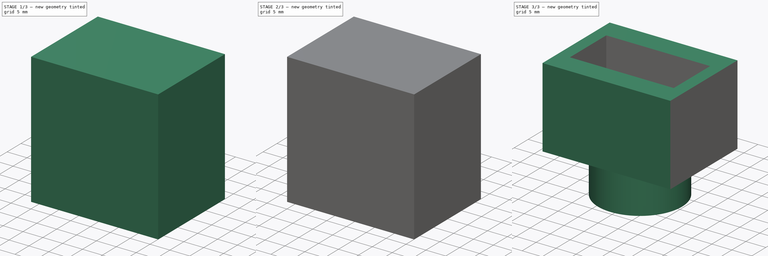
[diagram: build sequence overview — one tinted view per stage of 3, left to right]
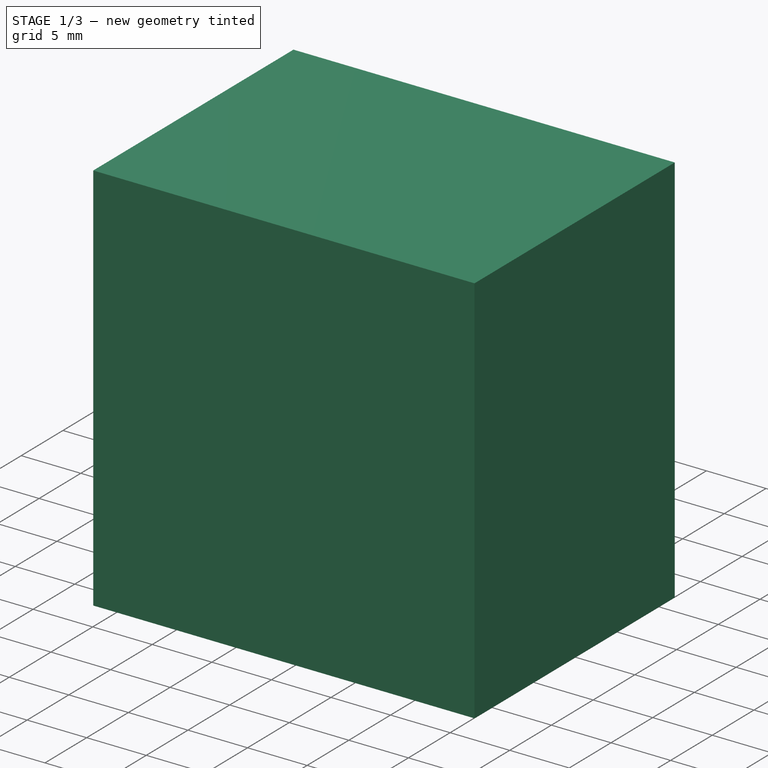
[diagram: stage 1 of 3 — iso view after this stage's code; geometry added in this stage tinted green]
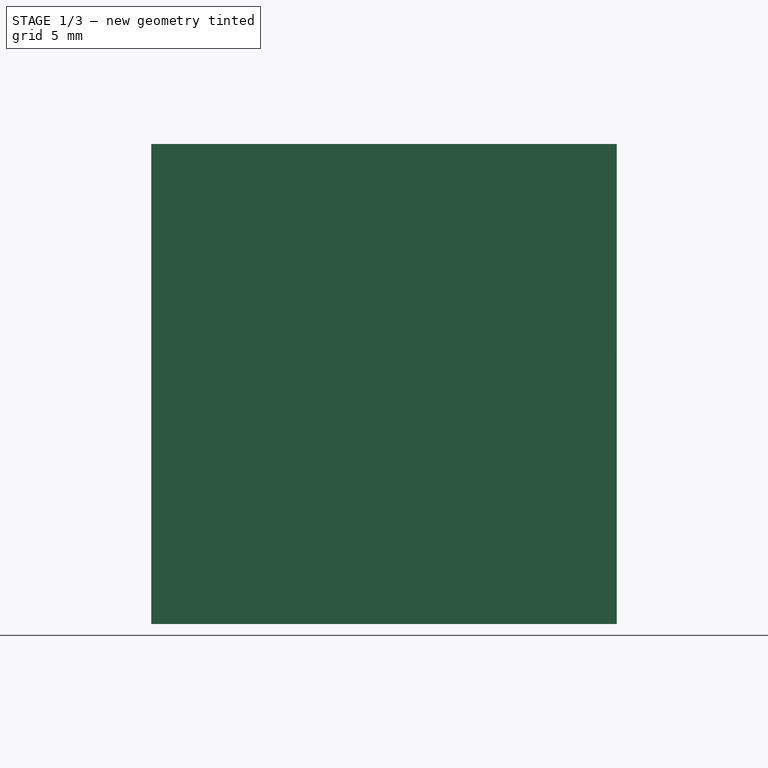
[diagram: stage 1 of 3 — front view after this stage's code; geometry added in this stage tinted green]
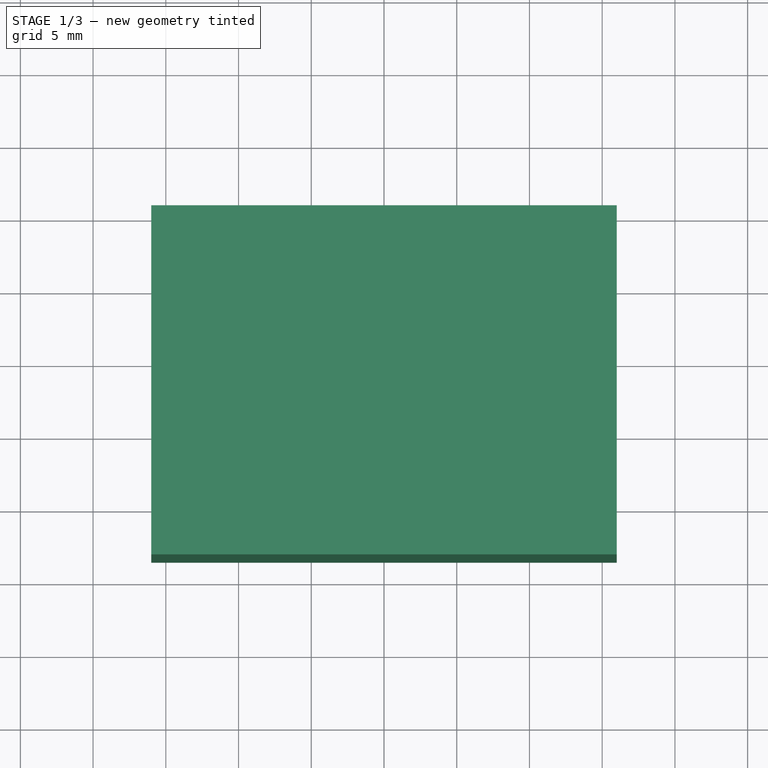
[diagram: stage 1 of 3 — top view after this stage's code; geometry added in this stage tinted green]
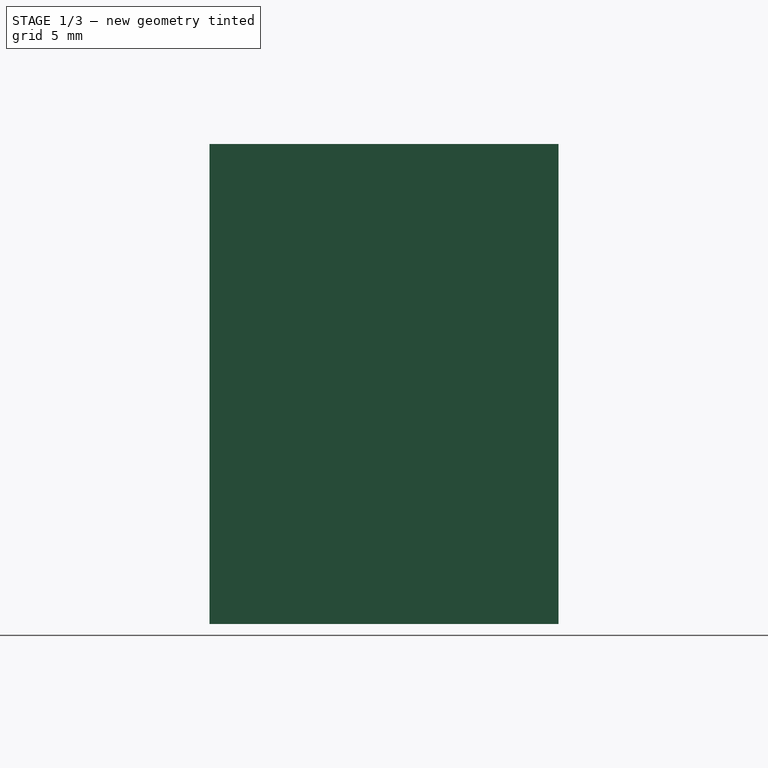
[diagram: stage 1 of 3 — right view after this stage's code; geometry added in this stage tinted green]
FCSTD DOCUMENT  (FreeCAD 0.20R29177 +426 (Git))
Label: aaaaa
License: All rights reserved
LicenseURL: http://en.wikipedia.org/wiki/All_rights_reserved
objects: Sketcher::SketchObject×5, PartDesign::Pad×2, PartDesign::Pocket×2, PartDesign::Fillet×2, PartDesign::Body×2
note: 19 computed .brp shape members not serialized (recipe doc carries the construction recipe); baked Part::Feature solids carry a one-line shape summary decoded from their .brp

FEATURE [Sketcher::SketchObject] Sketch001
  AttachmentOffset = pos=(0,0,10) rot=(0,0,1;0rad)
  FullyConstrained = false
  MapMode = 5
  Placement = pos=(0,0,10) rot=(0,0,1;0rad)
  Support = -> [XY_Plane002]
  sketch-geometry (4):
    g0: LineSegment StartX=-16 StartY=10.5 StartZ=0 EndX=16 EndY=10.5 EndZ=0
    g1: LineSegment StartX=16 StartY=10.5 StartZ=0 EndX=16 EndY=-13.5 EndZ=0
    g2: LineSegment StartX=16 StartY=-13.5 StartZ=0 EndX=-16 EndY=-13.5 EndZ=0
    g3: LineSegment StartX=-16 StartY=-13.5 StartZ=0 EndX=-16 EndY=10.5 EndZ=0
  constraints (11):
    c: Coincident(g0,g1)
    c: Coincident(g1,g2)
    c: Coincident(g2,g3)
    c: Coincident(g3,g0)
    c: Horizontal(g0)
    c: Horizontal(g2)
    c: Vertical(g1)
    c: Vertical(g3)
    c: DistanceX(g0,g0) = 32
    c: DistanceY(g3,g3) = 24
    c: DistanceY(g-1,g0) = 10.5
FEATURE [PartDesign::Pad] Pad001
  Direction = (0,0,1)
  Length = 33
  Length2 = 100
  Profile = -> Sketch001
  ReferenceAxis = -> Sketch001 [N_Axis]
  Type = 0
FEATURE [Sketcher::SketchObject] Sketch002
  FullyConstrained = true
  MapMode = 5
  Support = -> [XY_Plane002]
  sketch-geometry (1):
    g0: Circle CenterX=0 CenterY=0 CenterZ=0 NormalX=0 NormalY=0 NormalZ=1 AngleXU=0 Radius=8
  constraints (2):
    c: Coincident(g0,g-1)
    c: Radius(g0) = 8
FEATURE [PartDesign::Pocket] Pocket
  BaseFeature = -> Pad001
  Direction = (0,0,-1)
  Length = 13
  Length2 = 100
  Profile = -> Sketch002
  Reversed = true
  Type = 0
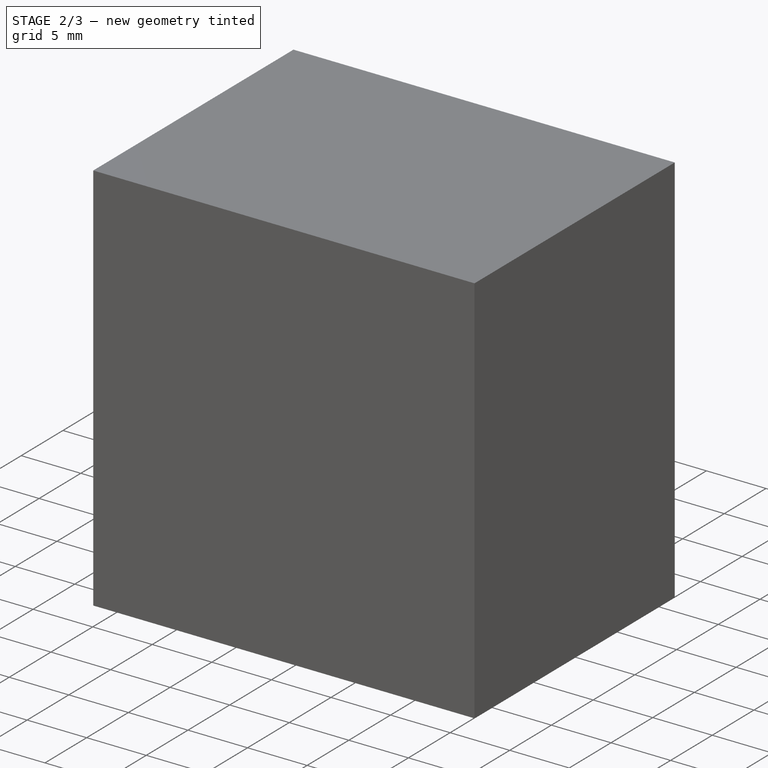
[diagram: stage 2 of 3 — iso view after this stage's code; geometry added in this stage tinted green]
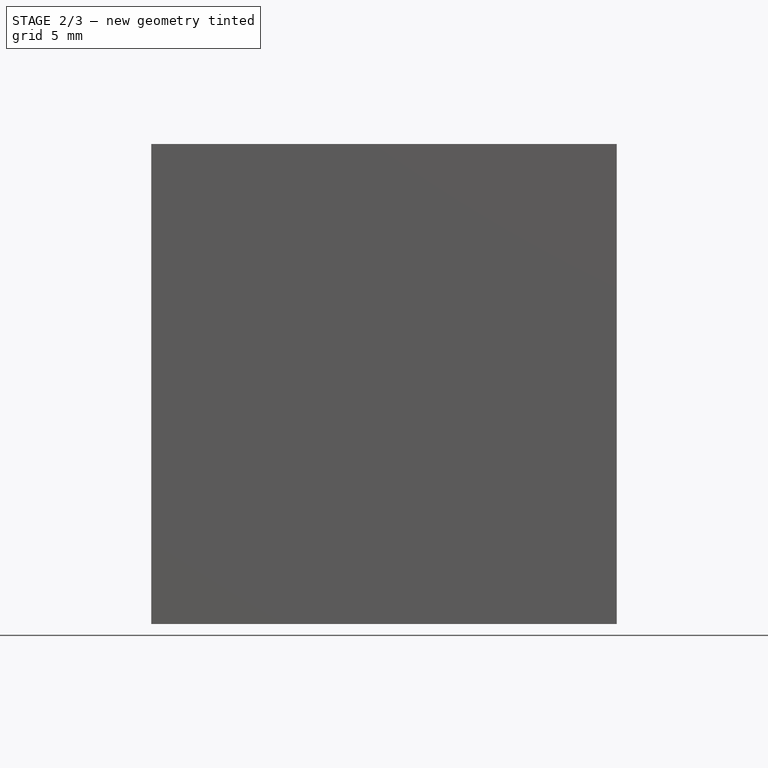
[diagram: stage 2 of 3 — front view after this stage's code; geometry added in this stage tinted green]
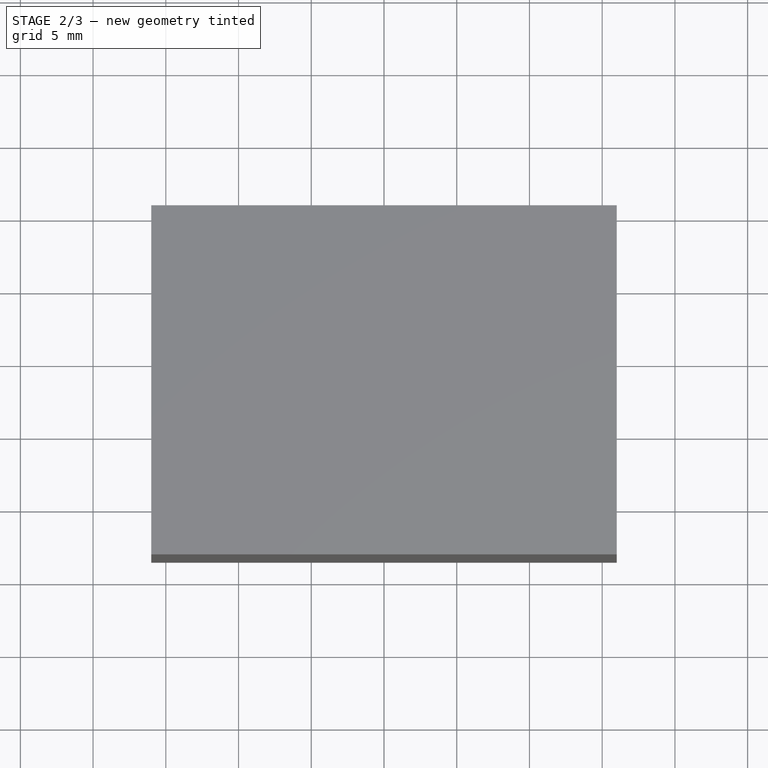
[diagram: stage 2 of 3 — top view after this stage's code; geometry added in this stage tinted green]
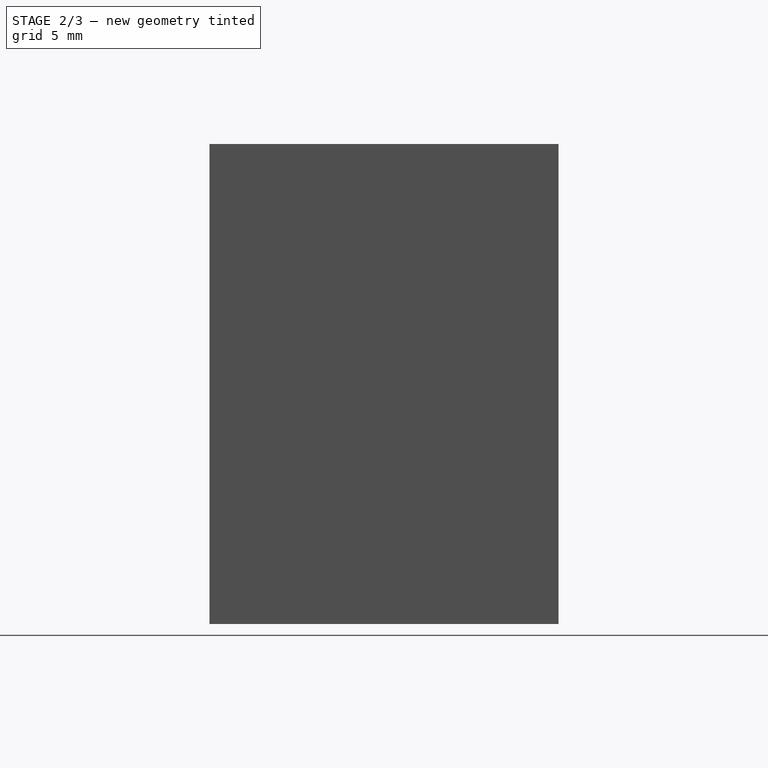
[diagram: stage 2 of 3 — right view after this stage's code; geometry added in this stage tinted green]
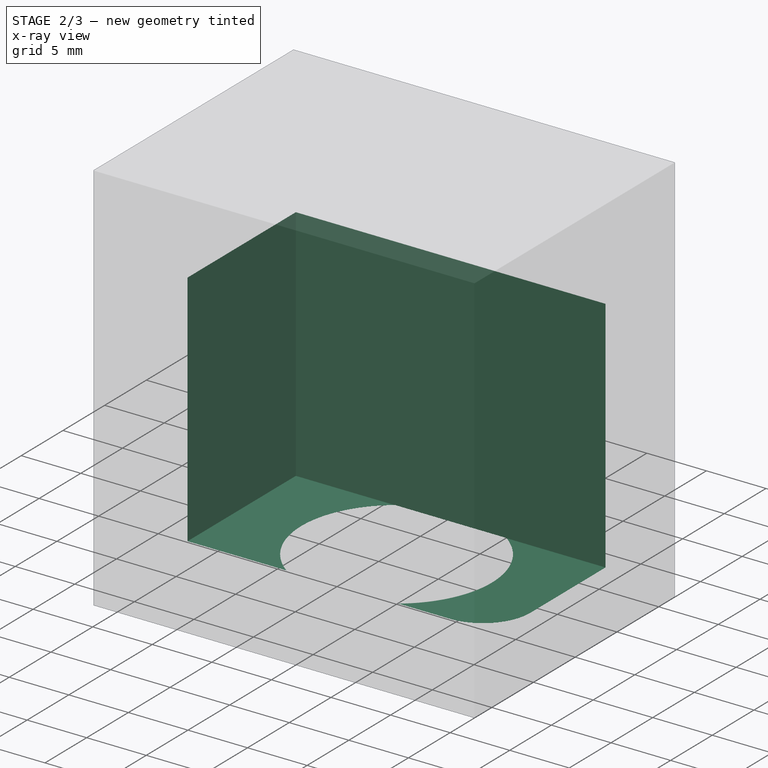
[diagram: stage 2 of 3 — x-ray composite at the iso view; earlier geometry ghosted, this stage's added geometry solid]
FEATURE [Sketcher::SketchObject] Sketch003
  AttachmentOffset = pos=(0,0,33) rot=(0,0,1;0rad)
  FullyConstrained = true
  MapMode = 5
  Placement = pos=(0,0,33) rot=(0,0,1;0rad)
  Support = -> [XY_Plane002]
  sketch-geometry (4):
    g0: LineSegment StartX=-13 StartY=6.5 StartZ=0 EndX=13 EndY=6.5 EndZ=0
    g1: LineSegment StartX=13 StartY=6.5 StartZ=0 EndX=13 EndY=-6.5 EndZ=0
    g2: LineSegment StartX=13 StartY=-6.5 StartZ=0 EndX=-13 EndY=-6.5 EndZ=0
    g3: LineSegment StartX=-13 StartY=-6.5 StartZ=0 EndX=-13 EndY=6.5 EndZ=0
  constraints (11):
    c: Coincident(g0,g1)
    c: Coincident(g1,g2)
    c: Coincident(g2,g3)
    c: Coincident(g3,g0)
    c: Horizontal(g0)
    c: Horizontal(g2)
    c: Vertical(g1)
    c: Vertical(g3)
    c: Symmetric(g2,g0,g-1)
    c: DistanceY(g3,g3) = 13
    c: DistanceX(g0,g0) = 26
FEATURE [PartDesign::Pocket] Pocket001
  BaseFeature = -> Pocket
  Direction = (0,0,-1)
  Length = 20
  Length2 = 100
  Profile = -> Sketch003
  Type = 0
FEATURE [PartDesign::Fillet] Fillet
  Base = -> Pocket001 [Edge31]
  BaseFeature = -> Pocket001
  Radius = 4
  SupportTransform = false
  UseAllEdges = false
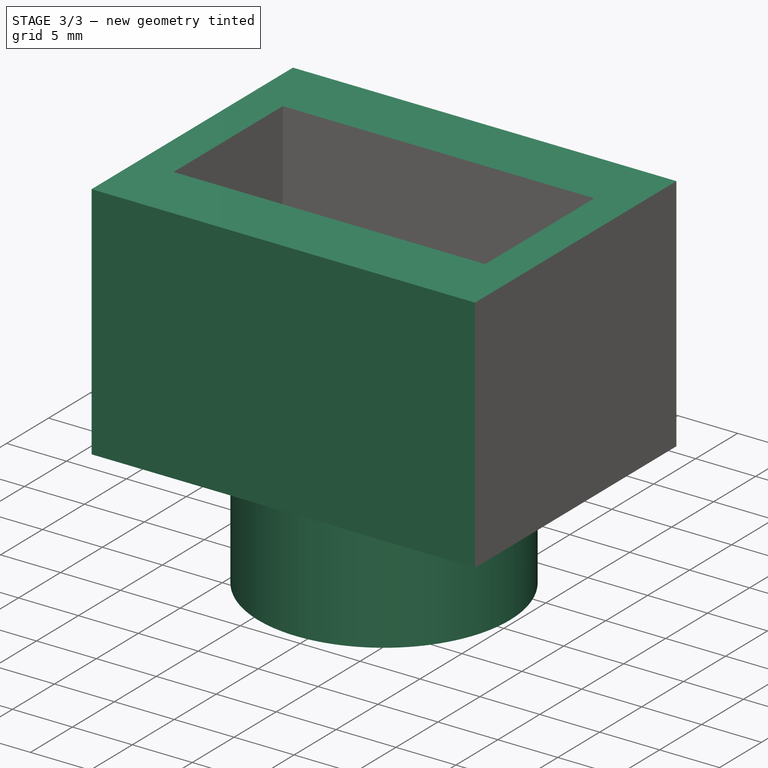
[diagram: stage 3 of 3 — iso view after this stage's code; geometry added in this stage tinted green]
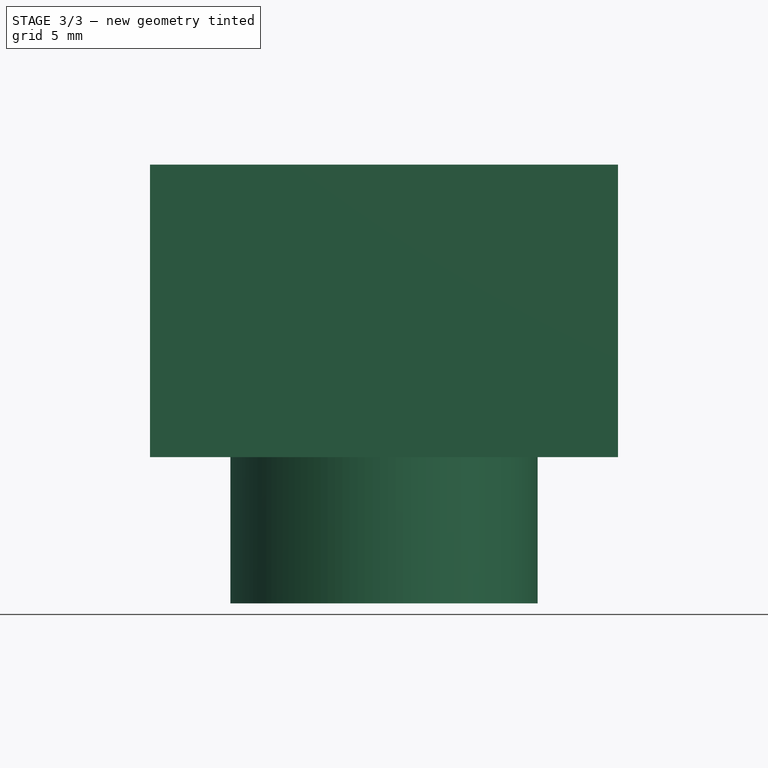
[diagram: stage 3 of 3 — front view after this stage's code; geometry added in this stage tinted green]
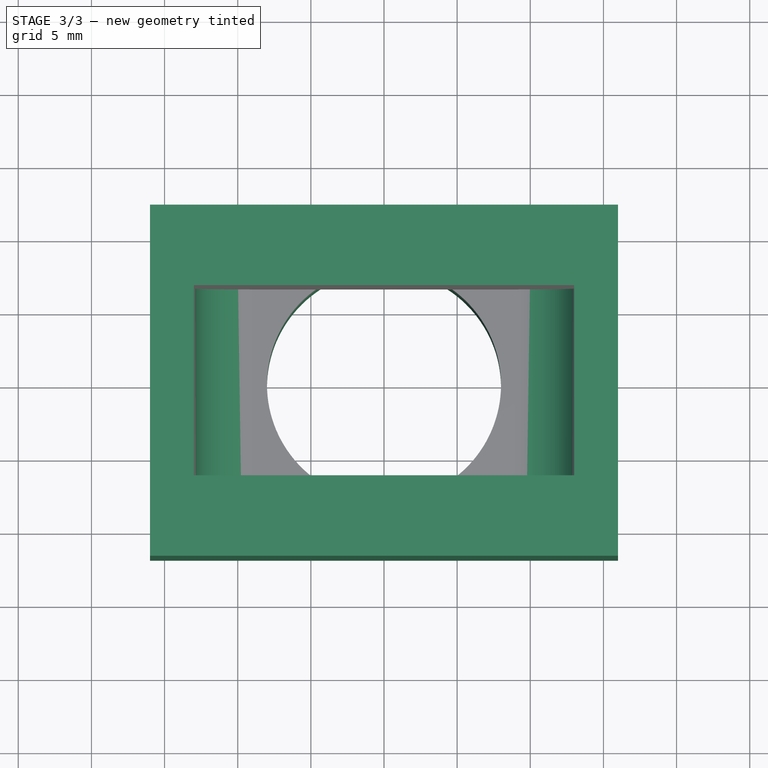
[diagram: stage 3 of 3 — top view after this stage's code; geometry added in this stage tinted green]
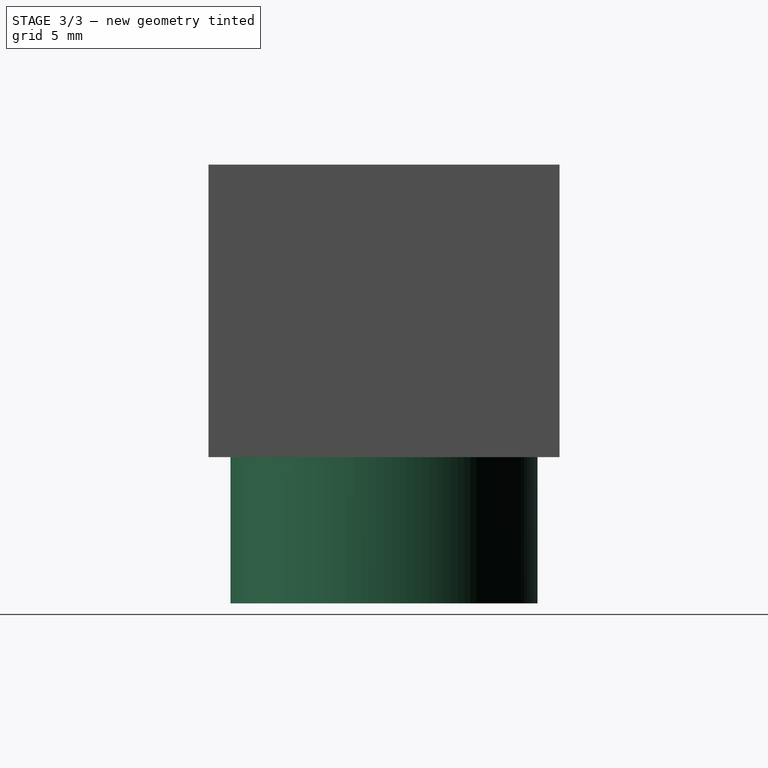
[diagram: stage 3 of 3 — right view after this stage's code; geometry added in this stage tinted green]
FEATURE [Sketcher::SketchObject] Sketch
  FullyConstrained = true
  MapMode = 5
  Support = -> [XY_Plane]
  sketch-geometry (2):
    g0: Circle CenterX=0 CenterY=0 CenterZ=0 NormalX=0 NormalY=0 NormalZ=1 AngleXU=0 Radius=10.5
    g1: Circle CenterX=0 CenterY=0 CenterZ=0 NormalX=0 NormalY=0 NormalZ=1 AngleXU=0 Radius=8
  constraints (4):
    c: Coincident(g0,g-1)
    c: Radius(g0) = 10.5
    c: Coincident(g1,g0)
    c: Radius(g1) = 8
FEATURE [PartDesign::Pad] Pad
  Direction = (0,0,1)
  Length = 10
  Length2 = 100
  Profile = -> Sketch
  ReferenceAxis = -> Sketch [N_Axis]
  Type = 0
FEATURE [PartDesign::Fillet] Fillet001
  Base = -> Fillet [Edge19]
  BaseFeature = -> Fillet
  Radius = 4
  SupportTransform = false
  UseAllEdges = false
FEATURE [PartDesign::Body] Body002
  Group = -> [Sketch001,Pad001,Sketch002,Pocket,Sketch003,Pocket001,Fillet,Fillet001]
  Origin = -> Origin002
  Tip = -> Fillet001
FEATURE [Sketcher::SketchObject] Sketch004
  FullyConstrained = false
  MapMode = 5
  Support = -> [XY_Plane]
  sketch-geometry (4):
    g0: LineSegment StartX=-15.5074 StartY=10.5 StartZ=0 EndX=16.4926 EndY=10.5 EndZ=0
    g1: LineSegment StartX=16.4926 StartY=10.5 StartZ=0 EndX=16.4926 EndY=-13.5 EndZ=0
    g2: LineSegment StartX=16.4926 StartY=-13.5 StartZ=0 EndX=-15.5074 EndY=-13.5 EndZ=0
    g3: LineSegment StartX=-15.5074 StartY=-13.5 StartZ=0 EndX=-15.5074 EndY=10.5 EndZ=0
  constraints (11):
    c: Coincident(g0,g1)
    c: Coincident(g1,g2)
    c: Coincident(g2,g3)
    c: Coincident(g3,g0)
    c: Horizontal(g0)
    c: Horizontal(g2)
    c: Vertical(g1)
    c: Vertical(g3)
    c: DistanceY(g-1,g0) = 10.5
    c: DistanceX(g0,g0) = 32
    c: DistanceY(g3,g3) = 24
FEATURE [PartDesign::Body] Body
  Group = -> [Sketch,Pad,Sketch004]
  Origin = -> Origin
  Tip = -> Pad
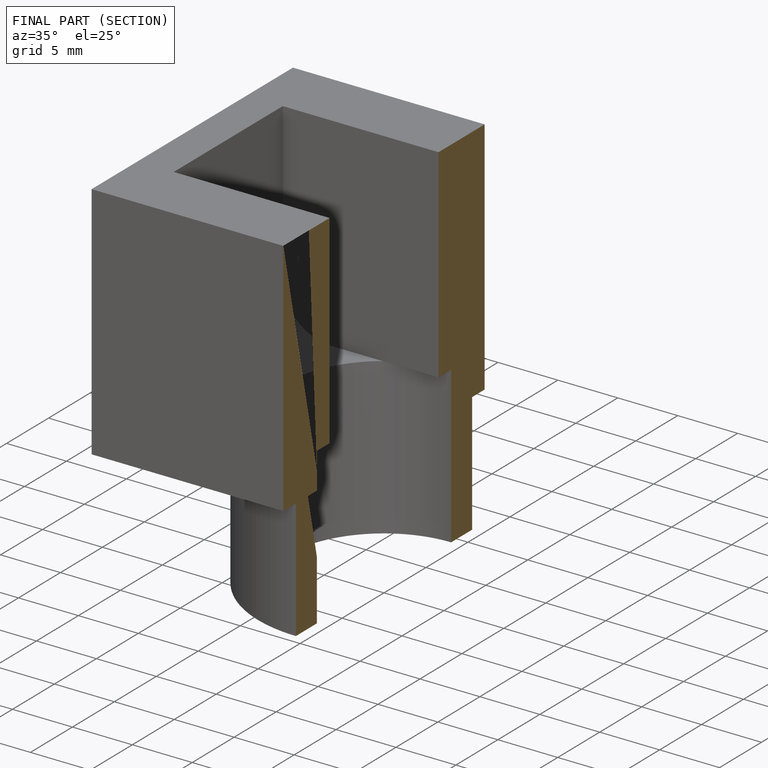
[diagram: finished part — half-section view (interior)]
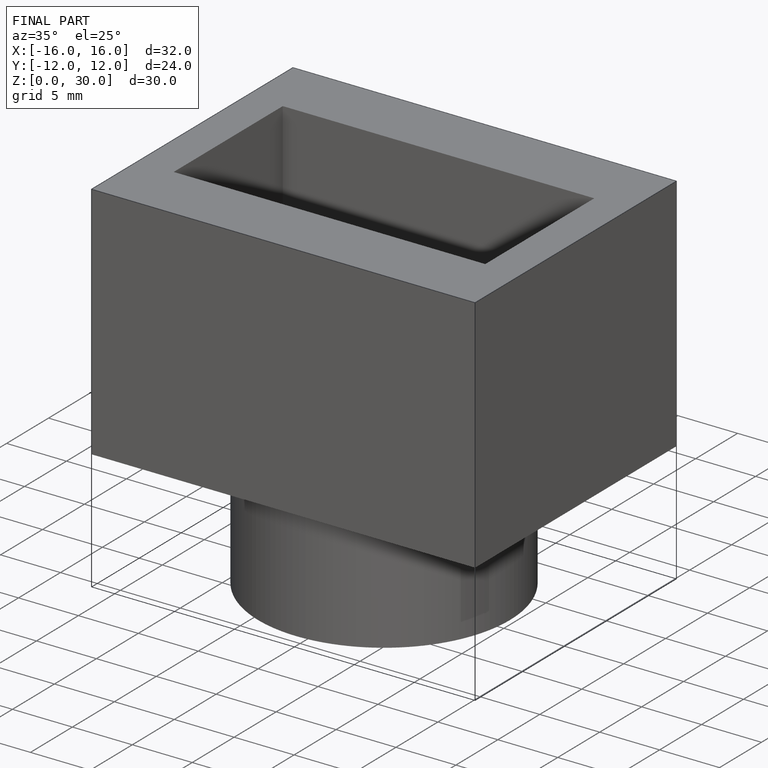
[diagram: finished part — iso view with bounding-box wireframe]
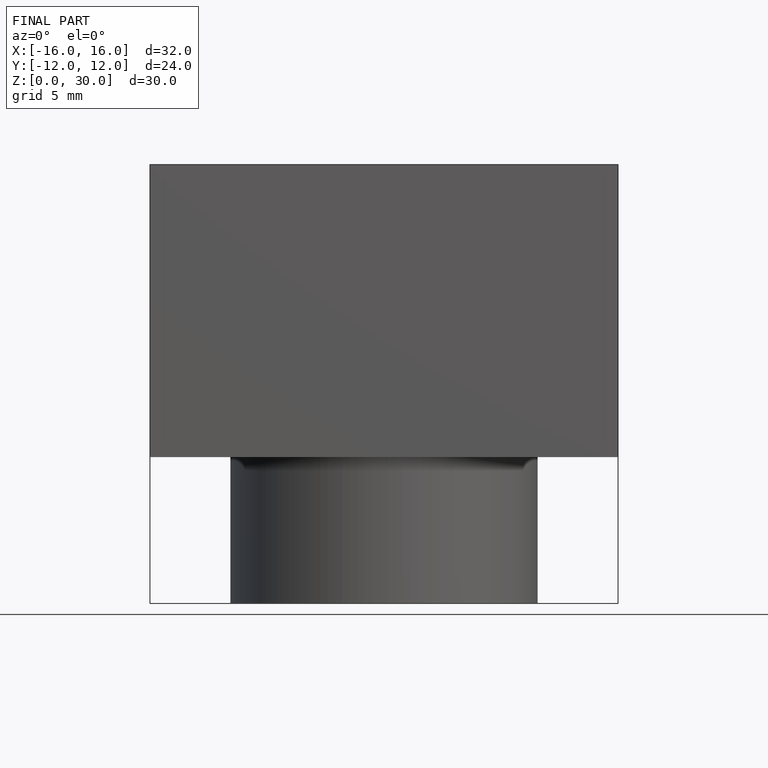
[diagram: finished part — front view with bounding-box wireframe]
